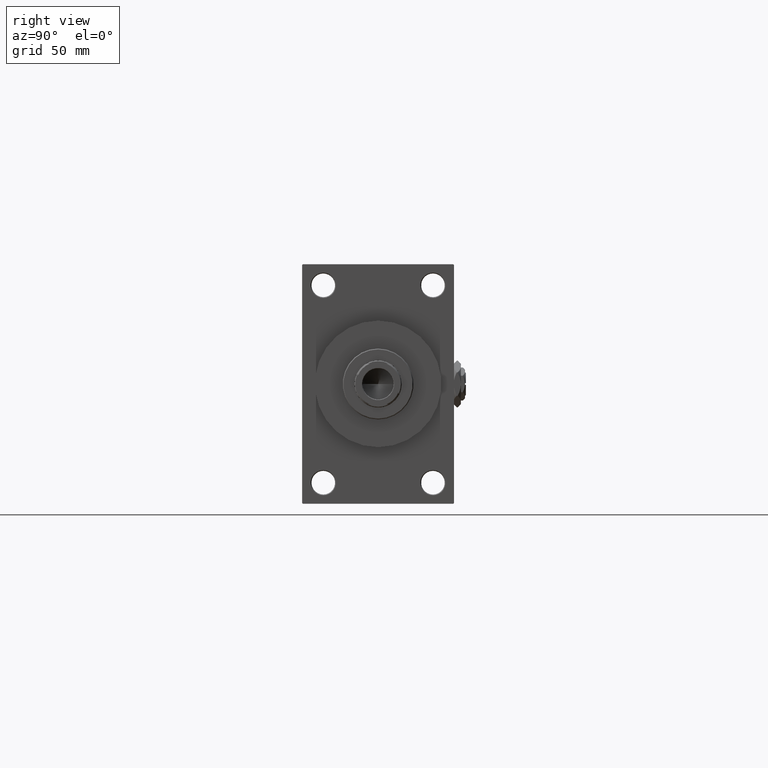
[diagram: clean part render]
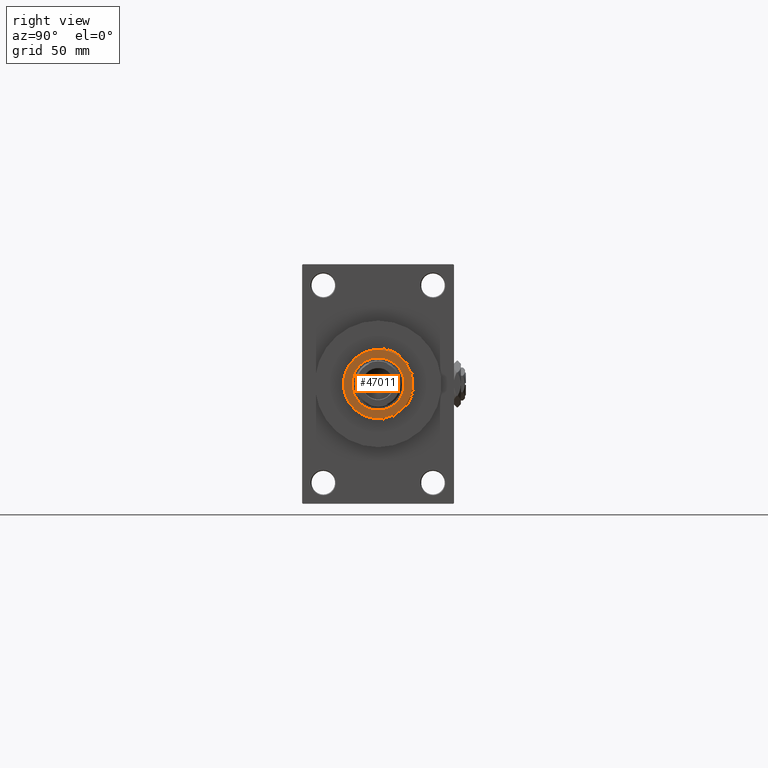
[diagram: same view with one face highlighted and labeled with its STEP entity id]
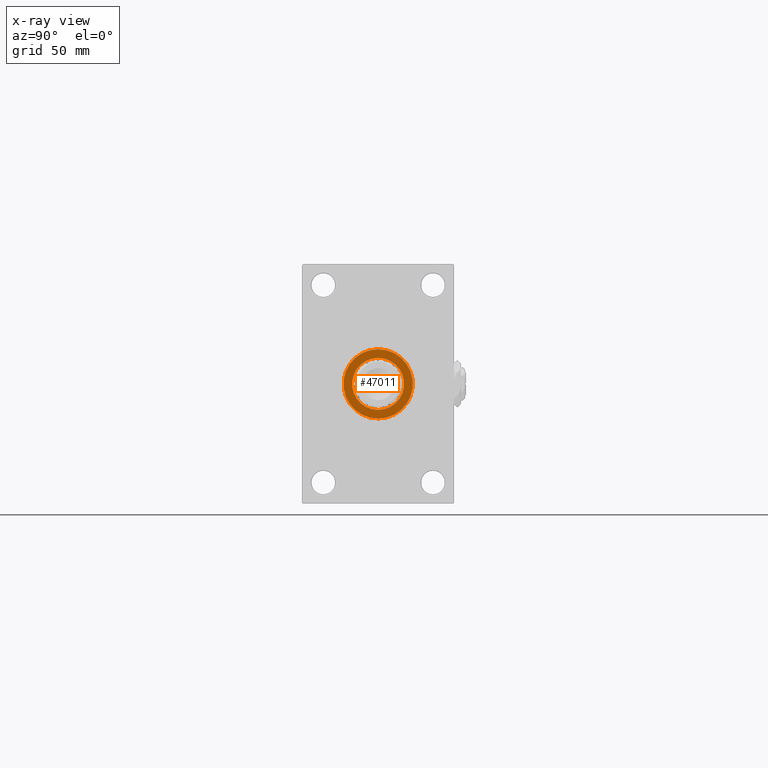
[diagram: x-ray of the same camera — body ghosted, the highlighted face saturated]
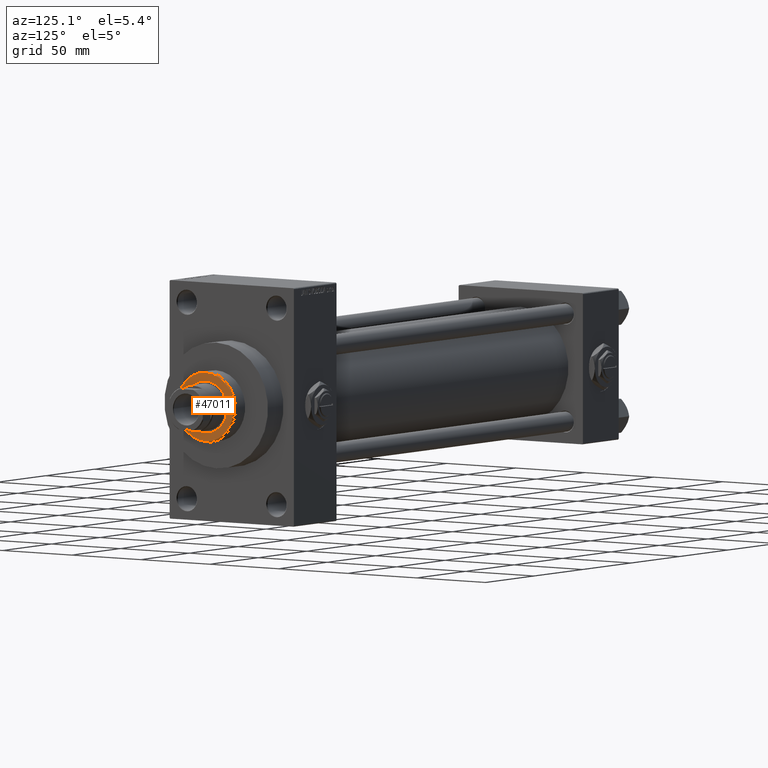
[diagram: same view with one face highlighted and labeled with its STEP entity id]
A machine part, right view. The second image highlights one B-rep face of the part: STEP entity #47011.
The next image is the same camera in x-ray: the body ghosted, the highlighted face saturated — about 0% of this face is hidden behind the body in this view.
A second angle (auxiliary view) of the same face is appended — the face is thin or edge-on in the first view.
In plain terms, the highlighted planar face has unit normal (1, -0, -0).
Its self-contained STEP definition (entity closure, byte-faithful):
#65 = EDGE_CURVE ( 'NONE', #44264, #43943, #33172, .T. ) ;
#1559 = ORIENTED_EDGE ( 'NONE', *, *, #47906, .F. ) ;
#1958 = AXIS2_PLACEMENT_3D ( 'NONE', #39414, #36662, #36419 ) ;
#3825 = ORIENTED_EDGE ( 'NONE', *, *, #27546, .T. ) ;
#5785 = FACE_BOUND ( 'NONE', #12478, .T. ) ;
#6638 = DIRECTION ( 'NONE',  ( 1.000000000000000000, 0.000000000000000000, 0.000000000000000000 ) ) ;
#9364 = DIRECTION ( 'NONE',  ( 0.000000000000000000, 0.000000000000000000, 1.000000000000000000 ) ) ;
#11361 = DIRECTION ( 'NONE',  ( 0.000000000000000000, 0.000000000000000000, 1.000000000000000000 ) ) ;
#11449 = CIRCLE ( 'NONE', #24166, 20.50000000000001776 ) ;
#12478 = EDGE_LOOP ( 'NONE', ( #1559, #14850 ) ) ;
#14850 = ORIENTED_EDGE ( 'NONE', *, *, #65, .F. ) ;
#15114 = CARTESIAN_POINT ( 'NONE',  ( -20.50000000000001776, 0.000000000000000000, 54.26000000000000512 ) ) ;
#15524 = EDGE_CURVE ( 'NONE', #25140, #28233, #11449, .T. ) ;
#16099 = DIRECTION ( 'NONE',  ( 1.000000000000000000, 0.000000000000000000, 0.000000000000000000 ) ) ;
#17239 = FACE_OUTER_BOUND ( 'NONE', #19447, .T. ) ;
#17695 = CARTESIAN_POINT ( 'NONE',  ( 20.50000000000001776, 2.541142108230759057E-15, 54.26000000000000512 ) ) ;
#18130 = AXIS2_PLACEMENT_3D ( 'NONE', #47950, #28050, #24820 ) ;
#19447 = EDGE_LOOP ( 'NONE', ( #43535, #3825 ) ) ;
#23705 = CARTESIAN_POINT ( 'NONE',  ( -15.50000000000000000, 1.898202538678397557E-15, 54.26000000000000512 ) ) ;
#24166 = AXIS2_PLACEMENT_3D ( 'NONE', #44493, #41246, #6638 ) ;
#24820 = DIRECTION ( 'NONE',  ( 1.000000000000000000, 0.000000000000000000, 0.000000000000000000 ) ) ;
#24971 = PLANE ( 'NONE',  #1958 ) ;
#25140 = VERTEX_POINT ( 'NONE', #15114 ) ;
#26565 = DIRECTION ( 'NONE',  ( 1.000000000000000000, 0.000000000000000000, 0.000000000000000000 ) ) ;
#27546 = EDGE_CURVE ( 'NONE', #28233, #25140, #45929, .T. ) ;
#28050 = DIRECTION ( 'NONE',  ( 0.000000000000000000, 0.000000000000000000, 1.000000000000000000 ) ) ;
#28233 = VERTEX_POINT ( 'NONE', #17695 ) ;
#29826 = AXIS2_PLACEMENT_3D ( 'NONE', #30297, #11361, #26565 ) ;
#30297 = CARTESIAN_POINT ( 'NONE',  ( 0.000000000000000000, 0.000000000000000000, 54.26000000000000512 ) ) ;
#33172 = CIRCLE ( 'NONE', #45888, 15.50000000000000000 ) ;
#34967 = CARTESIAN_POINT ( 'NONE',  ( 15.50000000000000000, 0.000000000000000000, 54.26000000000000512 ) ) ;
#36419 = DIRECTION ( 'NONE',  ( 1.000000000000000000, 0.000000000000000000, -0.000000000000000000 ) ) ;
#36662 = DIRECTION ( 'NONE',  ( 0.000000000000000000, 0.000000000000000000, 1.000000000000000000 ) ) ;
#39414 = CARTESIAN_POINT ( 'NONE',  ( 0.000000000000000000, 0.000000000000000000, 54.26000000000000512 ) ) ;
#41246 = DIRECTION ( 'NONE',  ( 0.000000000000000000, 0.000000000000000000, 1.000000000000000000 ) ) ;
#43535 = ORIENTED_EDGE ( 'NONE', *, *, #15524, .T. ) ;
#43943 = VERTEX_POINT ( 'NONE', #34967 ) ;
#44264 = VERTEX_POINT ( 'NONE', #23705 ) ;
#44493 = CARTESIAN_POINT ( 'NONE',  ( 0.000000000000000000, 0.000000000000000000, 54.26000000000000512 ) ) ;
#45888 = AXIS2_PLACEMENT_3D ( 'NONE', #46481, #9364, #16099 ) ;
#45929 = CIRCLE ( 'NONE', #18130, 20.50000000000001776 ) ;
#46481 = CARTESIAN_POINT ( 'NONE',  ( 0.000000000000000000, 0.000000000000000000, 54.26000000000000512 ) ) ;
#46549 = CIRCLE ( 'NONE', #29826, 15.50000000000000000 ) ;
#47011 = ADVANCED_FACE ( 'NONE', ( #5785, #17239 ), #24971, .T. ) ;
#47906 = EDGE_CURVE ( 'NONE', #43943, #44264, #46549, .T. ) ;
#47950 = CARTESIAN_POINT ( 'NONE',  ( 0.000000000000000000, 0.000000000000000000, 54.26000000000000512 ) ) ;